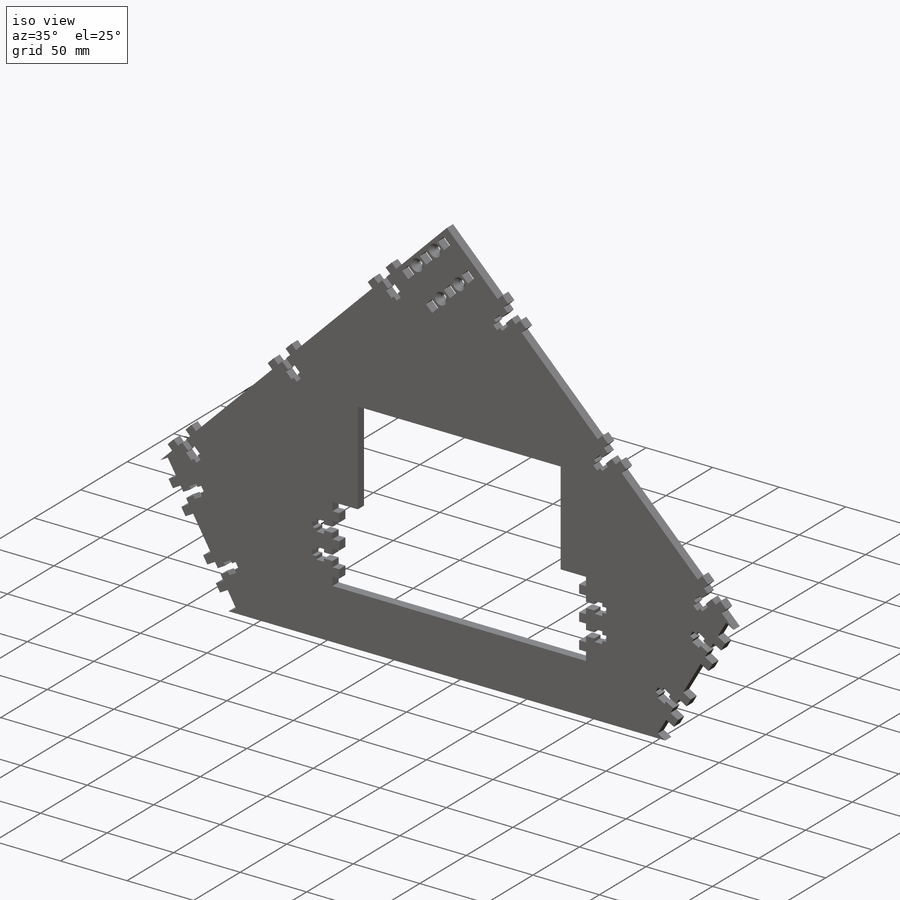
[diagram: iso view]
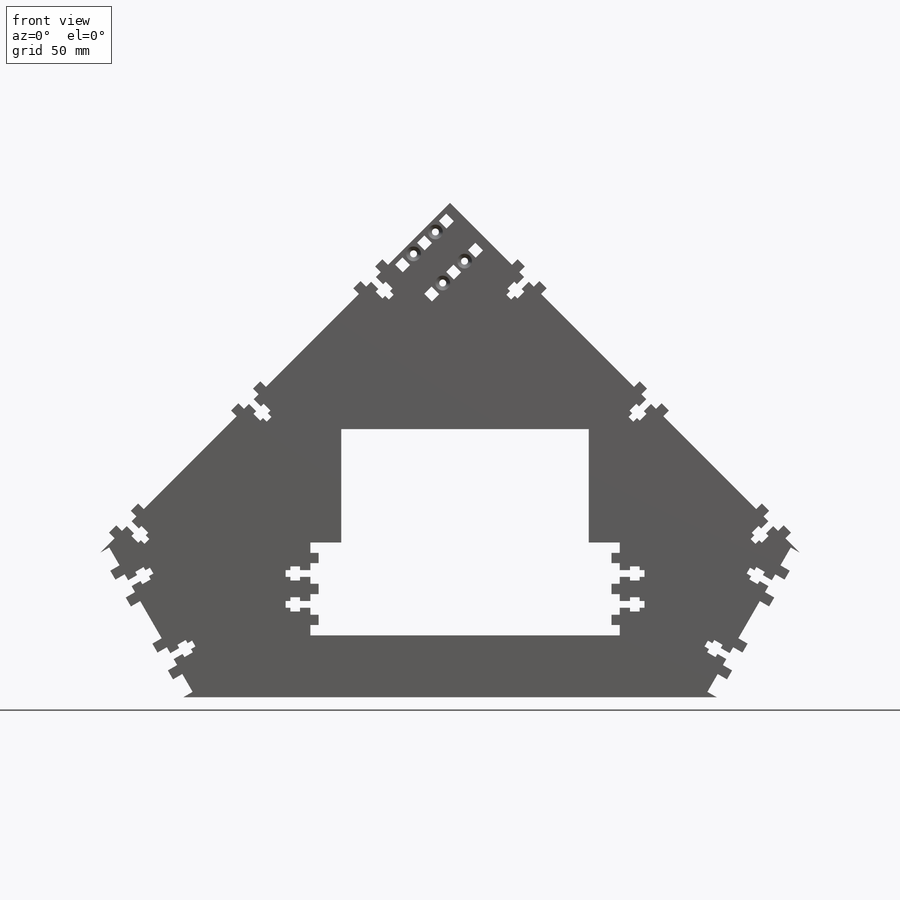
[diagram: front view]
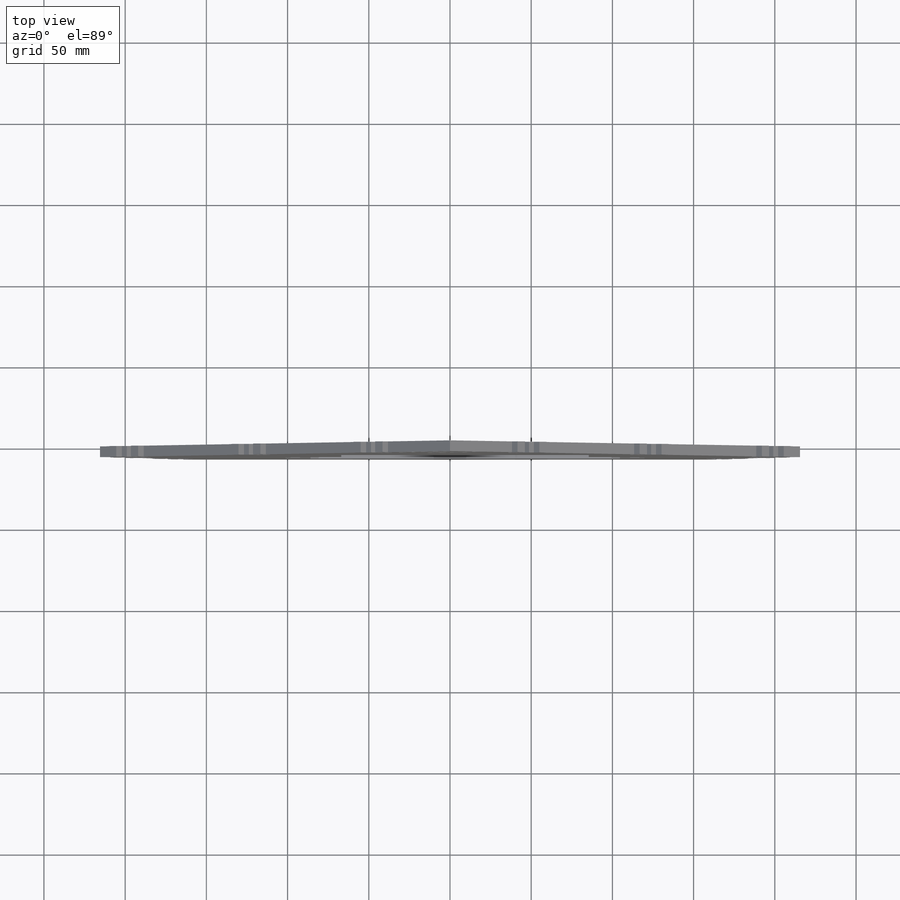
[diagram: top view]
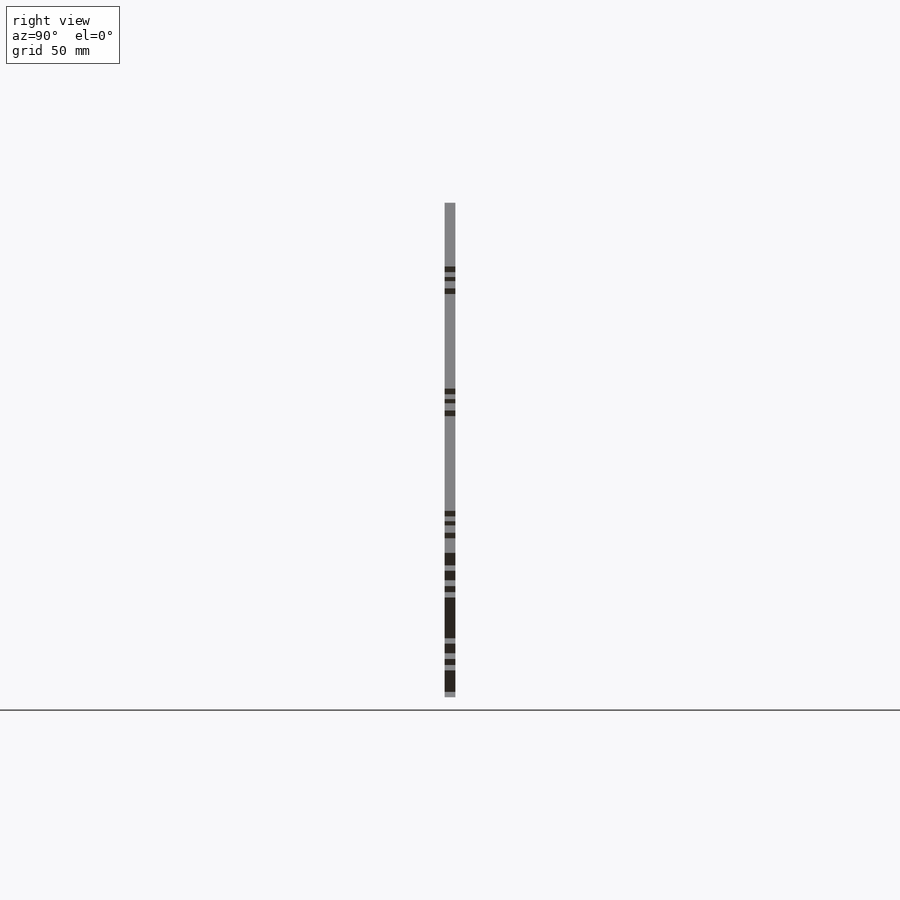
[diagram: right view]
SOLIDWORKS PART (.sldprt)
format: sldprt  version: not decoded by parser v0  size: 1,812,480 bytes
history: native  units: mm
features: sketch x9, extrude x4, cut_extrude x4, hole x2, material x1 (+12 scaffold rows collapsed)
feature tree (32):
  scaffold x12  (default folders/planes/origin — collapsed)
  material  "Acrylic (Blue)"
  sketch  "Sketch1"  dims[c1.D1=304.8mm c1.D2=~76.84197mm c2.D2=120.0deg c2.D3=88.9mm c2.D1=304.8mm c2.D4=5.08mm c2.D5=12.7mm]
  extrude  "Boss-Extrude1"  Depth=6.604mm
  sketch  "Sketch2"  dims[c1.D1=127.0mm c1.D2=127.0mm c2.D1=127.0mm c2.D2=~55.986785mm c3.D2=60.0deg c3.D3=38.1mm c3.D4=152.4mm c4.D2=38.1mm c4.D5=19.05mm c4.D6=57.15mm]
  cut_extrude  "Cut-Extrude1"  [1 undecoded]
  sketch  "Sketch3"  dims[D1=6.604mm]
  cut_extrude  "Cut-Extrude2"  [1 undecoded]
  sketch  "Sketch8"  dims[c1.D1=4.3053mm c1.D2=6.35mm c1.D3=6.604mm c1.D4=12.7mm c2.D1=6.35mm c2.D2=25.4mm c2.D3=6.35mm]
  cut_extrude  "Cut-Extrude4"  [1 undecoded]
  sketch  "Sketch4"
  extrude  "NUT_HOLE"  Depth=6.35mm
  extrude  "NUT_HOLE_2X"  Depth=6.35mm
  sketch  "Sketch6"
  cut_extrude  "Cut-Extrude3"  [1 undecoded]
  sketch  "Sketch7"
  extrude  "Boss-Extrude2"  Depth=1.778mm
  hole  "CSK for #8 Flat Head Socket Cap Screw1"  Diameter=4.3053mm Depth=6.604mm
  sketch  "Sketch10"
  sketch  "Sketch9"  dims[hole-wizard template sketch: 59 standard entries collapsed; hole parameters above]
  hole  "Move Face3"  Diameter=0.0508mm
decode coverage: 11 of 19 modeling features carry decoded parameters
note: ~ marks probable driven/reference dimensions
note: 4 parameter values undecoded
summary: no parameter record found for 4 features
note: suppression state not decoded; provenance and decode notes live in map.json
